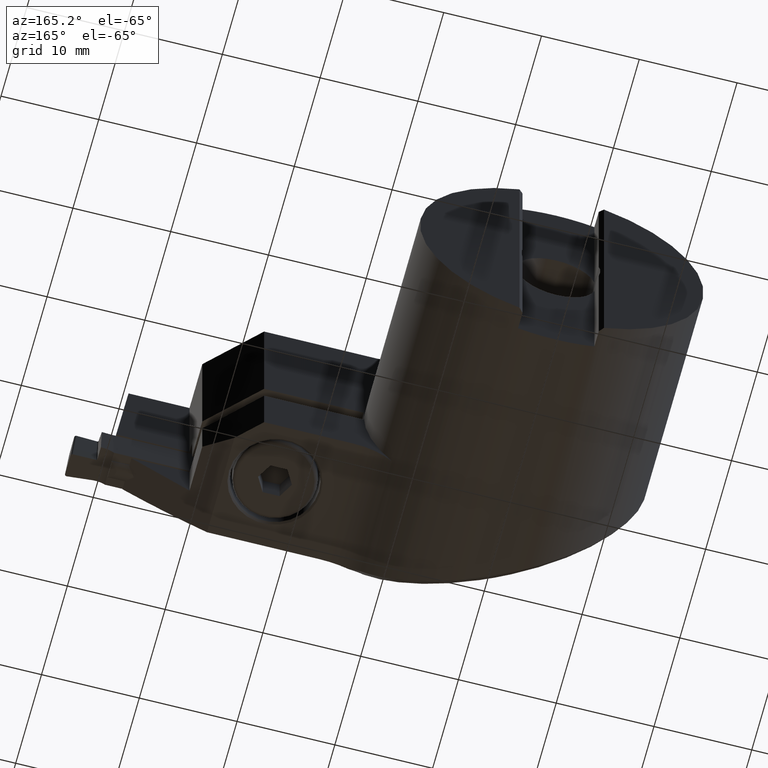
[diagram: clean part render]
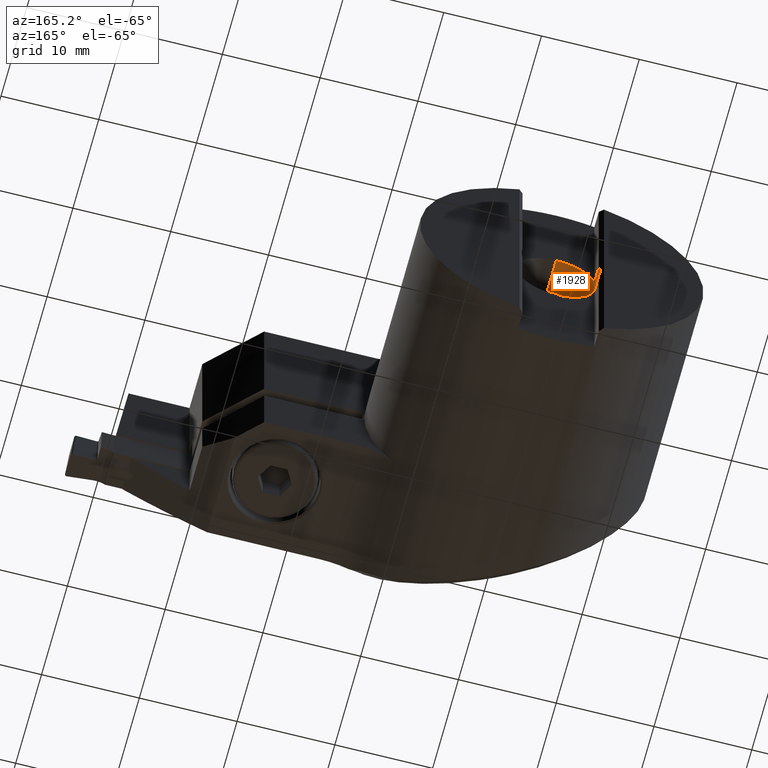
[diagram: same view with one face highlighted and labeled with its STEP entity id]
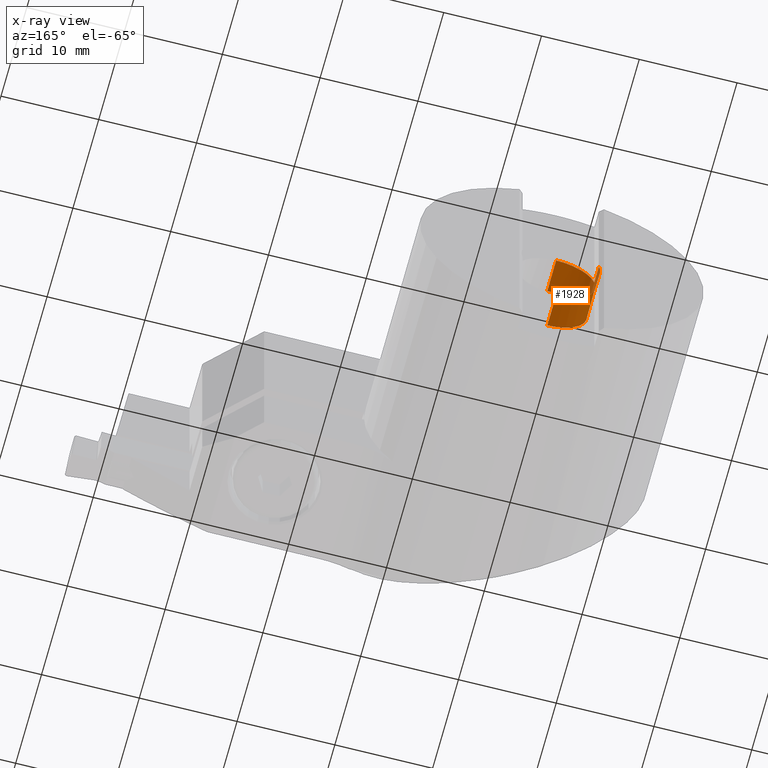
[diagram: x-ray of the same camera — body ghosted, the highlighted face saturated]
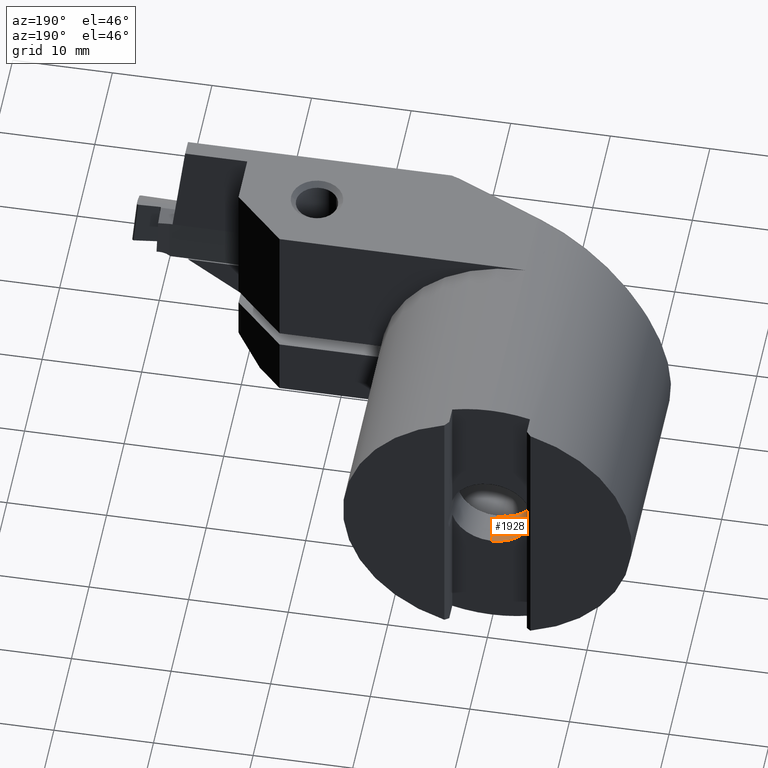
[diagram: same view with one face highlighted and labeled with its STEP entity id]
A machine part, auxiliary view. The second image highlights one B-rep face of the part: STEP entity #1928.
The next image is the same camera in x-ray: the body ghosted, the highlighted face saturated — about 2% of this face is hidden behind the body in this view.
A second angle (auxiliary view) of the same face is appended — the face is thin or edge-on in the first view.
In plain terms, the highlighted cylindrical surface (partial cylindrical patch) has radius 4.025 mm, axis along (-0, 1, -0).
Its self-contained STEP definition (entity closure, byte-faithful):
#1030=VERTEX_POINT('NONE',#2527);
#1040=VERTEX_POINT('NONE',#2538);
#1042=VERTEX_POINT('NONE',#2540);
#1046=EDGE_CURVE('NONE',#1040,#1416,#2544,.T.);
#1110=VERTEX_POINT('NONE',#2610);
#1218=EDGE_CURVE('NONE',#1514,#1368,#2728,.F.);
#1368=VERTEX_POINT('NONE',#2892);
#1370=EDGE_CURVE('NONE',#1482,#1030,#2894,.F.);
#1416=VERTEX_POINT('NONE',#2947);
#1482=VERTEX_POINT('NONE',#3022);
#1514=VERTEX_POINT('NONE',#3056);
#1538=EDGE_CURVE('NONE',#1030,#1514,#3081,.F.);
#1558=EDGE_CURVE('NONE',#1040,#1042,#3101,.F.);
#1586=EDGE_CURVE('NONE',#1368,#1110,#3131,.F.);
#1900=EDGE_CURVE('NONE',#1110,#1416,#3479,.F.);
#1928=ADVANCED_FACE('NONE',(#3512),#3513,.F.);
#2040=EDGE_CURVE('NONE',#1042,#1482,#3636,.T.);
#2527=CARTESIAN_POINT('',(-3.9,-2.15,0.995301461869721));
#2538=CARTESIAN_POINT('',(0.0,-5.60000000000002,-4.025));
#2540=CARTESIAN_POINT('',(5.23536506635494E-016,-5.60000000000002,4.025));
#2544=LINE('',#4493,#4494);
#2610=CARTESIAN_POINT('',(-3.9,-2.15,-0.995301461869721));
#2728=ELLIPSE('',#4817,5.69220958855168,4.025);
#2892=CARTESIAN_POINT('',(-3.9,-0.419999999999995,-0.995301461869721));
#2894=CIRCLE('',#5072,4.025);
#2947=CARTESIAN_POINT('',(4.9292033665681E-016,-2.15,-4.025));
#3022=CARTESIAN_POINT('',(0.0,-2.15,4.025));
#3056=CARTESIAN_POINT('',(-3.9,-0.419999999999995,0.995301461869721));
#3081=LINE('',#5362,#5363);
#3101=CIRCLE('',#5395,4.025);
#3131=LINE('',#5466,#5467);
#3479=CIRCLE('',#6131,4.025);
#3512=FACE_OUTER_BOUND('',#6172,.T.);
#3513=CYLINDRICAL_SURFACE('',#6173,4.025);
#3636=LINE('',#6469,#6470);
#4493=CARTESIAN_POINT('',(4.9292033665681E-016,0.0,-4.025));
#4494=VECTOR('',#7286,1000.0);
#4817=AXIS2_PLACEMENT_3D('',#7440,#7441,#7442);
#5072=AXIS2_PLACEMENT_3D('',#7606,#7607,#7608);
#5362=CARTESIAN_POINT('',(-3.9,0.0,0.995301461869721));
#5363=VECTOR('',#7804,1.0);
#5395=AXIS2_PLACEMENT_3D('',#7813,#7814,#7815);
#5466=CARTESIAN_POINT('',(-3.9,0.0,-0.995301461869721));
#5467=VECTOR('',#7841,1.0);
#6131=AXIS2_PLACEMENT_3D('',#8252,#8253,#8254);
#6172=EDGE_LOOP('',(#8309,#8310,#8311,#8312,#8313,#8314,#8315,#8316));
#6173=AXIS2_PLACEMENT_3D('',#8317,#8318,#8319);
#6469=CARTESIAN_POINT('',(0.0,0.0,4.025));
#6470=VECTOR('',#8447,1000.0);
#7286=DIRECTION('',(-0.0,1.0,0.0));
#7440=CARTESIAN_POINT('',(0.0,-4.31999999999995,0.0));
#7441=DIRECTION('',(0.707106781186544,0.707106781186551,0.0));
#7442=DIRECTION('',(-0.707106781186551,0.707106781186544,-0.0));
#7606=CARTESIAN_POINT('',(0.0,-2.15,0.0));
#7607=DIRECTION('',(0.0,1.0,0.0));
#7608=DIRECTION('',(0.0,0.0,1.0));
#7804=DIRECTION('',(0.0,-1.0,0.0));
#7813=CARTESIAN_POINT('',(0.0,-5.60000000000002,0.0));
#7814=DIRECTION('',(0.0,-1.0,0.0));
#7815=DIRECTION('',(0.0,0.0,1.0));
#7841=DIRECTION('',(-0.0,1.0,0.0));
#8252=CARTESIAN_POINT('',(0.0,-2.15,0.0));
#8253=DIRECTION('',(0.0,1.0,0.0));
#8254=DIRECTION('',(0.0,0.0,1.0));
#8309=ORIENTED_EDGE('',*,*,#1558,.F.);
#8310=ORIENTED_EDGE('',*,*,#1046,.T.);
#8311=ORIENTED_EDGE('',*,*,#1900,.F.);
#8312=ORIENTED_EDGE('',*,*,#1586,.F.);
#8313=ORIENTED_EDGE('',*,*,#1218,.F.);
#8314=ORIENTED_EDGE('',*,*,#1538,.F.);
#8315=ORIENTED_EDGE('',*,*,#1370,.F.);
#8316=ORIENTED_EDGE('',*,*,#2040,.F.);
#8317=CARTESIAN_POINT('',(0.0,0.0,0.0));
#8318=DIRECTION('',(-0.0,1.0,-0.0));
#8319=DIRECTION('',(0.0,0.0,1.0));
#8447=DIRECTION('',(-0.0,1.0,0.0));